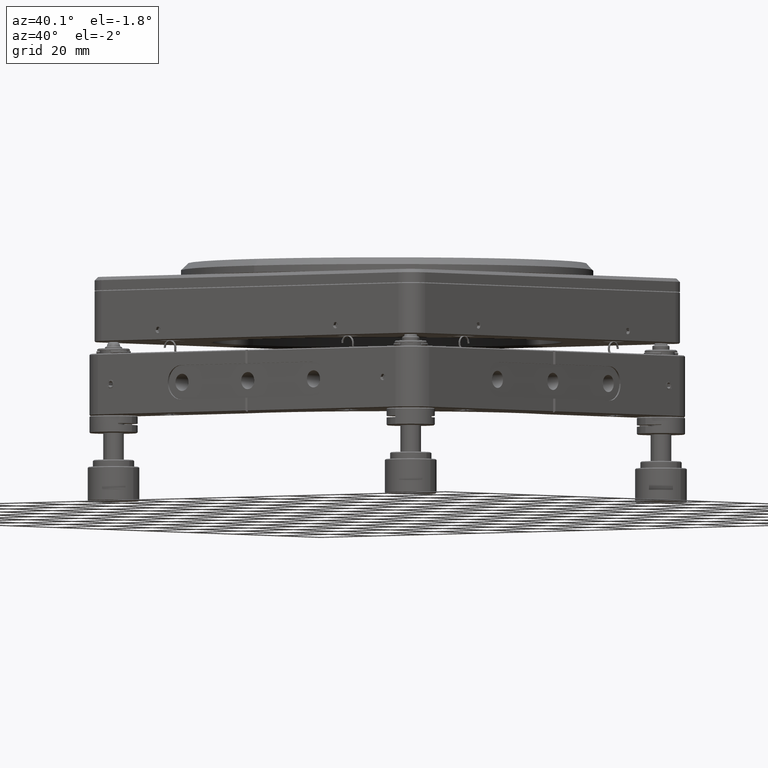
[diagram: clean part render]
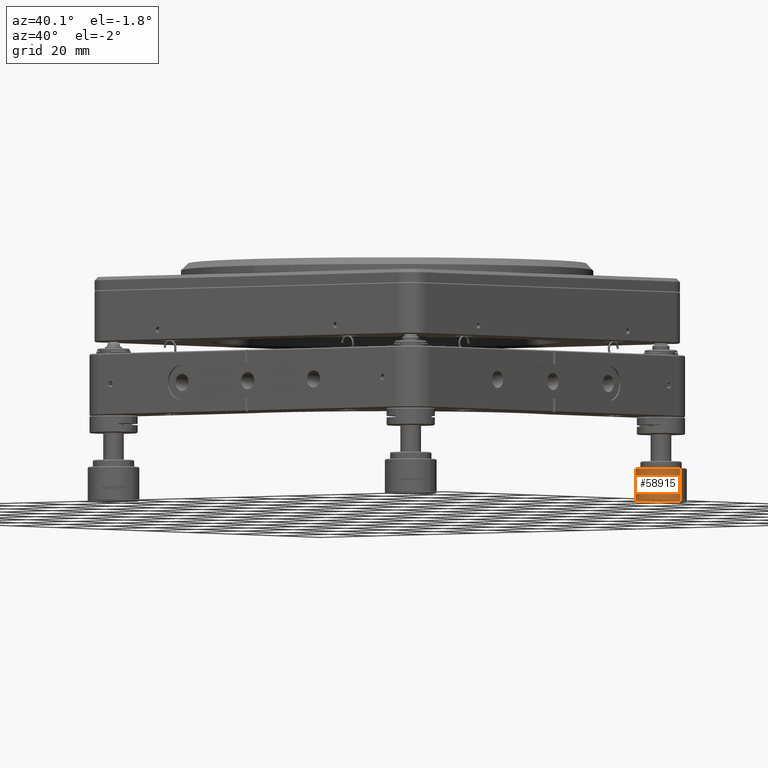
[diagram: same view with one face highlighted and labeled with its STEP entity id]
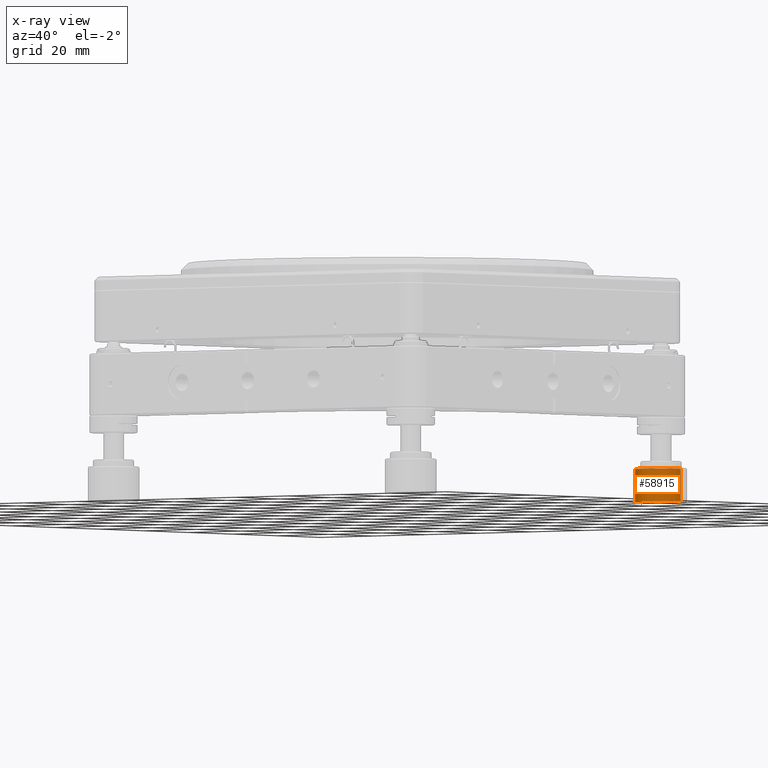
[diagram: x-ray of the same camera — body ghosted, the highlighted face saturated]
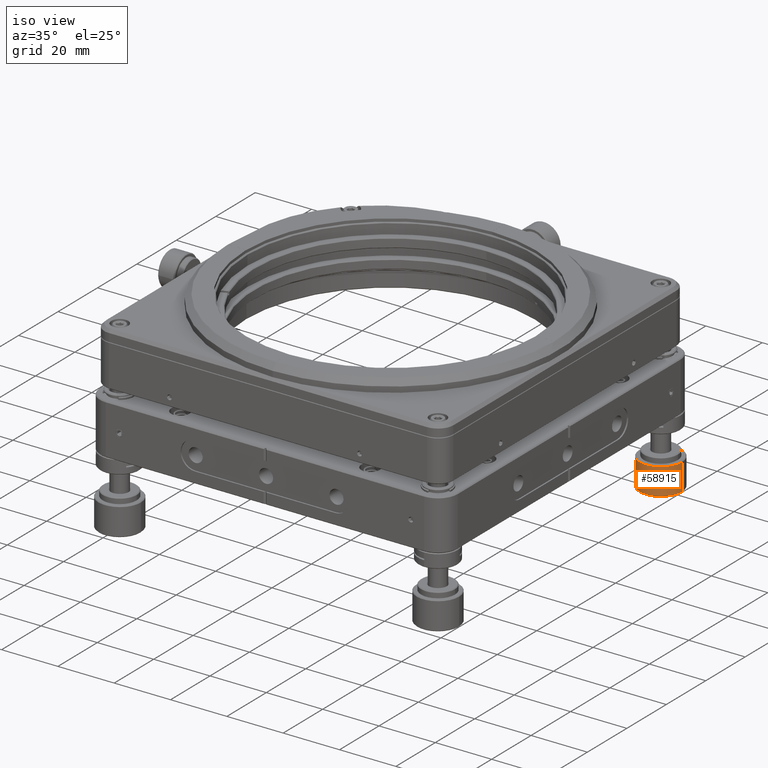
[diagram: same view with one face highlighted and labeled with its STEP entity id]
A machine part, auxiliary view. The second image highlights one B-rep face of the part: STEP entity #58915.
The next image is the same camera in x-ray: the body ghosted, the highlighted face saturated — about 0% of this face is hidden behind the body in this view.
A second angle (iso view) of the same face is appended — the face is thin or edge-on in the first view.
In plain terms, the highlighted cylindrical surface (edge-blend (fillet) strip) has radius 7.5 mm, axis along (-0, -0, -1).
Its self-contained STEP definition (entity closure, byte-faithful):
#1476 = DIRECTION ( 'NONE',  ( -0.000000000000000000, -0.000000000000000000, -1.000000000000000000 ) ) ;
#3181 = DIRECTION ( 'NONE',  ( -1.000000000000000000, 0.000000000000000000, 0.000000000000000000 ) ) ;
#9160 = DIRECTION ( 'NONE',  ( 0.000000000000000000, 0.000000000000000000, 1.000000000000000000 ) ) ;
#11677 = CARTESIAN_POINT ( 'NONE',  ( 56.50000000000002132, 56.50000000000001421, -24.08342712474618708 ) ) ;
#13059 = AXIS2_PLACEMENT_3D ( 'NONE', #100538, #9160, #55211 ) ;
#21295 = DIRECTION ( 'NONE',  ( -0.000000000000000000, -0.000000000000000000, -1.000000000000000000 ) ) ;
#21459 = CARTESIAN_POINT ( 'NONE',  ( 64.00000000000002842, 56.50000000000001421, -23.83342712474618708 ) ) ;
#22346 = ORIENTED_EDGE ( 'NONE', *, *, #94417, .T. ) ;
#35053 = VECTOR ( 'NONE', #142788, 1000.000000000000000 ) ;
#36484 = ORIENTED_EDGE ( 'NONE', *, *, #92525, .T. ) ;
#47294 = EDGE_LOOP ( 'NONE', ( #95407, #22346, #61521, #36484 ) ) ;
#47680 = EDGE_CURVE ( 'NONE', #148663, #104383, #62240, .T. ) ;
#54615 = CIRCLE ( 'NONE', #13059, 7.500000000000000000 ) ;
#55211 = DIRECTION ( 'NONE',  ( -1.000000000000000000, 0.000000000000000000, 0.000000000000000000 ) ) ;
#57939 = VERTEX_POINT ( 'NONE', #67929 ) ;
#58915 = ADVANCED_FACE ( 'NONE', ( #104176 ), #150185, .T. ) ;
#61521 = ORIENTED_EDGE ( 'NONE', *, *, #47680, .T. ) ;
#62240 = LINE ( 'NONE', #120532, #35053 ) ;
#64870 = EDGE_CURVE ( 'NONE', #57939, #115908, #106617, .T. ) ;
#67929 = CARTESIAN_POINT ( 'NONE',  ( 64.00000000000002842, 56.50000000000001421, -24.08342712474618708 ) ) ;
#92525 = EDGE_CURVE ( 'NONE', #104383, #115908, #54615, .T. ) ;
#94417 = EDGE_CURVE ( 'NONE', #57939, #148663, #109899, .T. ) ;
#95407 = ORIENTED_EDGE ( 'NONE', *, *, #64870, .F. ) ;
#97479 = CARTESIAN_POINT ( 'NONE',  ( 64.00000000000002842, 56.50000000000001421, -33.58342712474620129 ) ) ;
#100538 = CARTESIAN_POINT ( 'NONE',  ( 56.50000000000002132, 56.50000000000001421, -33.58342712474620129 ) ) ;
#104176 = FACE_OUTER_BOUND ( 'NONE', #47294, .T. ) ;
#104383 = VERTEX_POINT ( 'NONE', #144205 ) ;
#104773 = VECTOR ( 'NONE', #1476, 1000.000000000000000 ) ;
#106617 = LINE ( 'NONE', #21459, #104773 ) ;
#109396 = AXIS2_PLACEMENT_3D ( 'NONE', #126417, #21295, #140196 ) ;
#109899 = CIRCLE ( 'NONE', #122155, 7.500000000000000000 ) ;
#115908 = VERTEX_POINT ( 'NONE', #97479 ) ;
#120532 = CARTESIAN_POINT ( 'NONE',  ( 49.00000000000002132, 56.50000000000001421, -23.83342712474618708 ) ) ;
#122155 = AXIS2_PLACEMENT_3D ( 'NONE', #11677, #131335, #3181 ) ;
#126417 = CARTESIAN_POINT ( 'NONE',  ( 56.50000000000002132, 56.50000000000001421, -23.83342712474618708 ) ) ;
#129411 = CARTESIAN_POINT ( 'NONE',  ( 49.00000000000002132, 56.50000000000001421, -24.08342712474618708 ) ) ;
#131335 = DIRECTION ( 'NONE',  ( -0.000000000000000000, -0.000000000000000000, -1.000000000000000000 ) ) ;
#140196 = DIRECTION ( 'NONE',  ( -1.000000000000000000, 0.000000000000000000, 0.000000000000000000 ) ) ;
#142788 = DIRECTION ( 'NONE',  ( -0.000000000000000000, -0.000000000000000000, -1.000000000000000000 ) ) ;
#144205 = CARTESIAN_POINT ( 'NONE',  ( 49.00000000000002132, 56.50000000000001421, -33.58342712474620129 ) ) ;
#148663 = VERTEX_POINT ( 'NONE', #129411 ) ;
#150185 = CYLINDRICAL_SURFACE ( 'NONE', #109396, 7.500000000000000000 ) ;